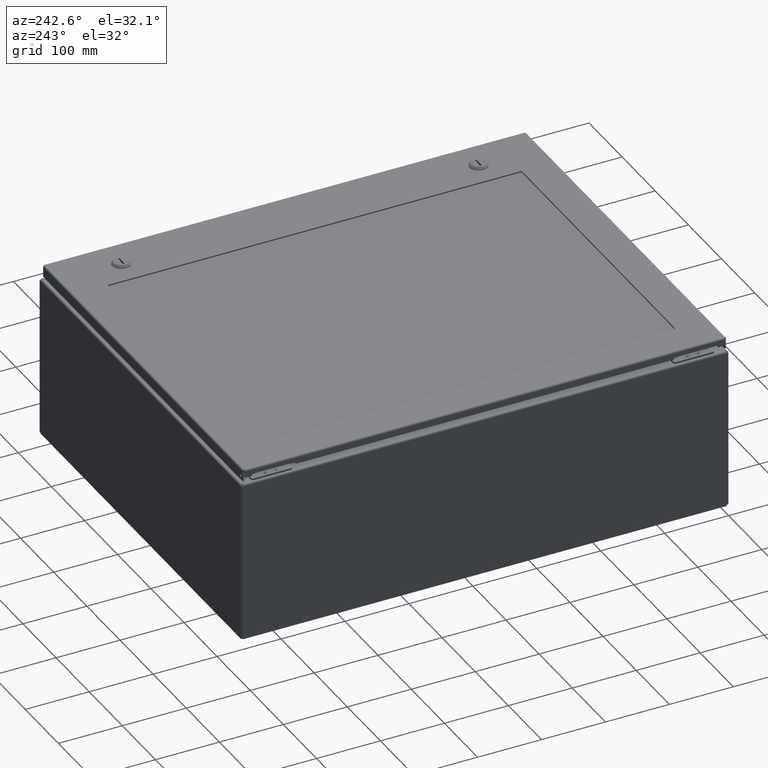
[diagram: clean part render]
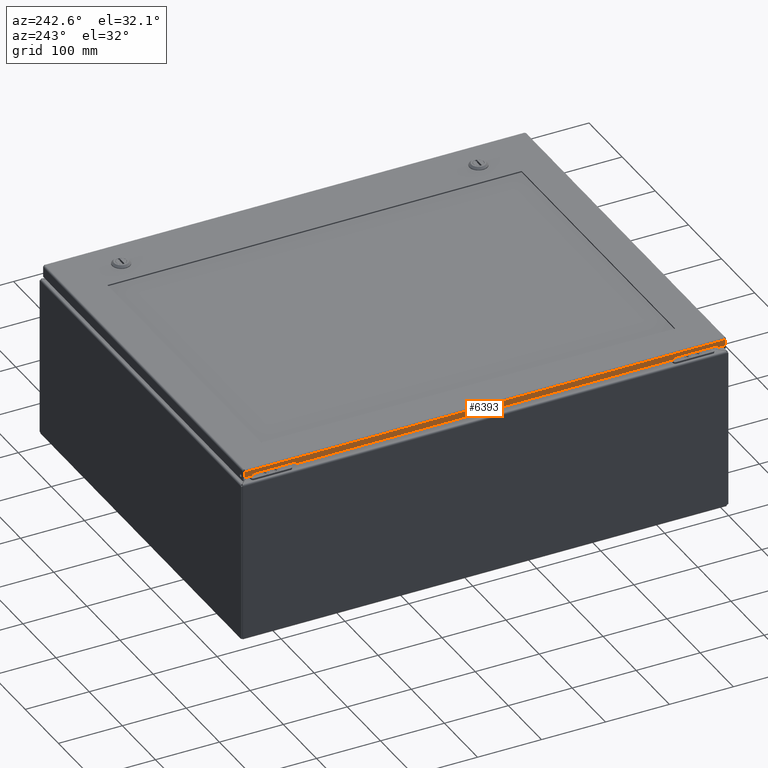
[diagram: same view with one face highlighted and labeled with its STEP entity id]
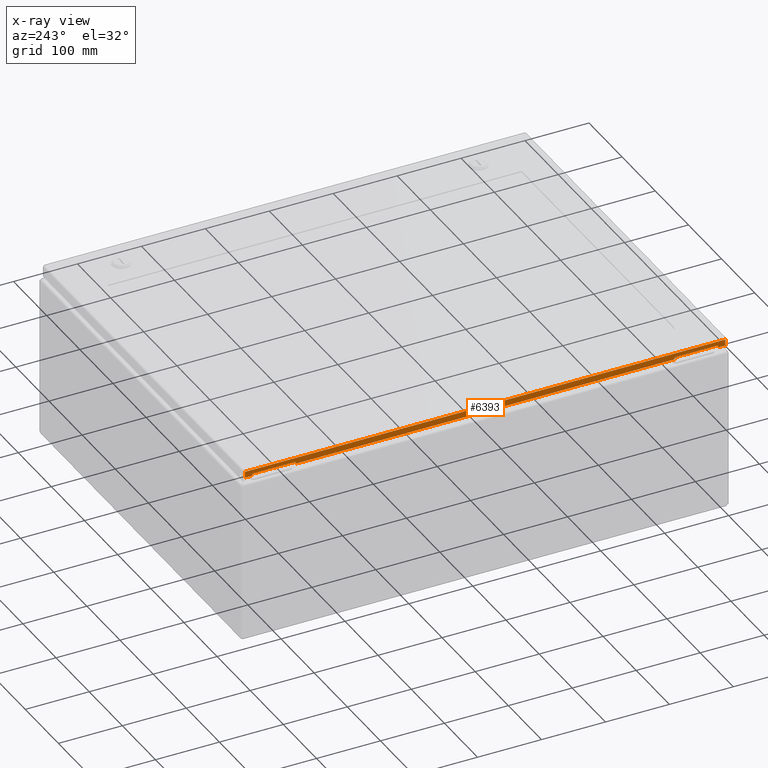
[diagram: x-ray of the same camera — body ghosted, the highlighted face saturated]
A machine part, auxiliary view. The second image highlights one B-rep face of the part: STEP entity #6393.
The next image is the same camera in x-ray: the body ghosted, the highlighted face saturated — about 0% of this face is hidden behind the body in this view.
In plain terms, the highlighted planar face has unit normal (1, 0, -0).
Its self-contained STEP definition (entity closure, byte-faithful):
#6082=CARTESIAN_POINT('',(23.874999999999996,0.085048543456041,0.480000000000007));
#6083=VERTEX_POINT('',#6082);
#6090=CARTESIAN_POINT('',(23.874999999999996,0.532000000000002,0.480000000000001));
#6091=VERTEX_POINT('',#6090);
#6092=CARTESIAN_POINT('',(23.874999999999993,0.532000000000001,0.480000000000001));
#6093=DIRECTION('',(0.0,-1.0,0.0));
#6094=VECTOR('',#6093,0.446951456543961);
#6095=LINE('',#6092,#6094);
#6096=EDGE_CURVE('',#6091,#6083,#6095,.T.);
#6121=CARTESIAN_POINT('',(23.874999999999996,0.532000000000002,0.355000000000001));
#6122=VERTEX_POINT('',#6121);
#6123=CARTESIAN_POINT('',(23.874999999999996,0.532000000000001,0.355000000000001));
#6124=DIRECTION('',(0.0,0.0,1.0));
#6125=VECTOR('',#6124,0.125000000000000);
#6126=LINE('',#6123,#6125);
#6127=EDGE_CURVE('',#6122,#6091,#6126,.T.);
#6152=CARTESIAN_POINT('',(23.874999999999996,3.219000000000002,0.355000000000001));
#6153=VERTEX_POINT('',#6152);
#6154=CARTESIAN_POINT('',(23.874999999999993,3.219000000000002,0.355000000000001));
#6155=DIRECTION('',(0.0,-1.0,0.0));
#6156=VECTOR('',#6155,2.687000000000001);
#6157=LINE('',#6154,#6156);
#6158=EDGE_CURVE('',#6153,#6122,#6157,.T.);
#6183=CARTESIAN_POINT('',(23.874999999999996,3.219000000000002,0.480000000000002));
#6184=VERTEX_POINT('',#6183);
#6185=CARTESIAN_POINT('',(23.874999999999996,3.219000000000003,0.480000000000002));
#6186=DIRECTION('',(0.0,0.0,-1.0));
#6187=VECTOR('',#6186,0.125000000000000);
#6188=LINE('',#6185,#6187);
#6189=EDGE_CURVE('',#6184,#6153,#6188,.T.);
#6214=CARTESIAN_POINT('',(23.874999999999989,26.530999999999985,0.480000000000009));
#6215=VERTEX_POINT('',#6214);
#6216=CARTESIAN_POINT('',(23.874999999999989,26.530999999999985,0.480000000000009));
#6217=DIRECTION('',(0.0,-1.0,0.0));
#6218=VECTOR('',#6217,23.311999999999983);
#6219=LINE('',#6216,#6218);
#6220=EDGE_CURVE('',#6215,#6184,#6219,.T.);
#6245=CARTESIAN_POINT('',(23.874999999999989,26.530999999999985,0.355000000000005));
#6246=VERTEX_POINT('',#6245);
#6247=CARTESIAN_POINT('',(23.874999999999989,26.530999999999985,0.355000000000005));
#6248=DIRECTION('',(0.0,0.0,1.0));
#6249=VECTOR('',#6248,0.125000000000004);
#6250=LINE('',#6247,#6249);
#6251=EDGE_CURVE('',#6246,#6215,#6250,.T.);
#6276=CARTESIAN_POINT('',(23.874999999999989,29.217999999999982,0.355000000000005));
#6277=VERTEX_POINT('',#6276);
#6278=CARTESIAN_POINT('',(23.874999999999993,29.217999999999982,0.355000000000005));
#6279=DIRECTION('',(0.0,-1.0,0.0));
#6280=VECTOR('',#6279,2.686999999999998);
#6281=LINE('',#6278,#6280);
#6282=EDGE_CURVE('',#6277,#6246,#6281,.T.);
#6307=CARTESIAN_POINT('',(23.874999999999989,29.217999999999982,0.480000000000009));
#6308=VERTEX_POINT('',#6307);
#6309=CARTESIAN_POINT('',(23.874999999999989,29.217999999999982,0.480000000000009));
#6310=DIRECTION('',(0.0,0.0,-1.0));
#6311=VECTOR('',#6310,0.125000000000004);
#6312=LINE('',#6309,#6311);
#6313=EDGE_CURVE('',#6308,#6277,#6312,.T.);
#6338=CARTESIAN_POINT('',(23.874999999999989,29.664951456543967,0.480000000000009));
#6339=VERTEX_POINT('',#6338);
#6340=CARTESIAN_POINT('',(23.874999999999993,29.664951456543967,0.480000000000009));
#6341=DIRECTION('',(0.0,-1.0,0.0));
#6342=VECTOR('',#6341,0.446951456543985);
#6343=LINE('',#6340,#6342);
#6344=EDGE_CURVE('',#6339,#6308,#6343,.T.);
#6355=CARTESIAN_POINT('',(23.874999999999993,14.875000000000000,0.374696241644324));
#6356=DIRECTION('',(-1.0,0.0,0.0));
#6357=DIRECTION('',(0.0,0.0,1.0));
#6358=AXIS2_PLACEMENT_3D('',#6355,#6356,#6357);
#6359=PLANE('',#6358);
#6360=ORIENTED_EDGE('',*,*,#6344,.T.);
#6361=ORIENTED_EDGE('',*,*,#6313,.T.);
#6362=ORIENTED_EDGE('',*,*,#6282,.T.);
#6363=ORIENTED_EDGE('',*,*,#6251,.T.);
#6364=ORIENTED_EDGE('',*,*,#6220,.T.);
#6365=ORIENTED_EDGE('',*,*,#6189,.T.);
#6366=ORIENTED_EDGE('',*,*,#6158,.T.);
#6367=ORIENTED_EDGE('',*,*,#6127,.T.);
#6368=ORIENTED_EDGE('',*,*,#6096,.T.);
#6369=CARTESIAN_POINT('',(23.874999999999996,0.085048543456040,0.105250000000004));
#6370=VERTEX_POINT('',#6369);
#6371=CARTESIAN_POINT('',(23.874999999999989,0.085048543456041,0.105250000000004));
#6372=DIRECTION('',(0.0,0.0,1.0));
#6373=VECTOR('',#6372,0.374750000000003);
#6374=LINE('',#6371,#6373);
#6375=EDGE_CURVE('',#6370,#6083,#6374,.T.);
#6376=ORIENTED_EDGE('',*,*,#6375,.F.);
#6377=CARTESIAN_POINT('',(23.874999999999989,29.664951456543967,0.105250000000001));
#6378=VERTEX_POINT('',#6377);
#6379=CARTESIAN_POINT('',(23.874999999999996,0.085048543456038,0.105249999999998));
#6380=DIRECTION('',(0.0,1.0,0.0));
#6381=VECTOR('',#6380,29.579902913087928);
#6382=LINE('',#6379,#6381);
#6383=EDGE_CURVE('',#6370,#6378,#6382,.T.);
#6384=ORIENTED_EDGE('',*,*,#6383,.T.);
#6385=CARTESIAN_POINT('',(23.874999999999986,29.664951456543967,0.480000000000009));
#6386=DIRECTION('',(0.0,0.0,-1.0));
#6387=VECTOR('',#6386,0.374750000000008);
#6388=LINE('',#6385,#6387);
#6389=EDGE_CURVE('',#6339,#6378,#6388,.T.);
#6390=ORIENTED_EDGE('',*,*,#6389,.F.);
#6391=EDGE_LOOP('',(#6360,#6361,#6362,#6363,#6364,#6365,#6366,#6367,#6368,#6376,#6384,#6390));
#6392=FACE_OUTER_BOUND('',#6391,.T.);
#6393=ADVANCED_FACE('',(#6392),#6359,.F.);